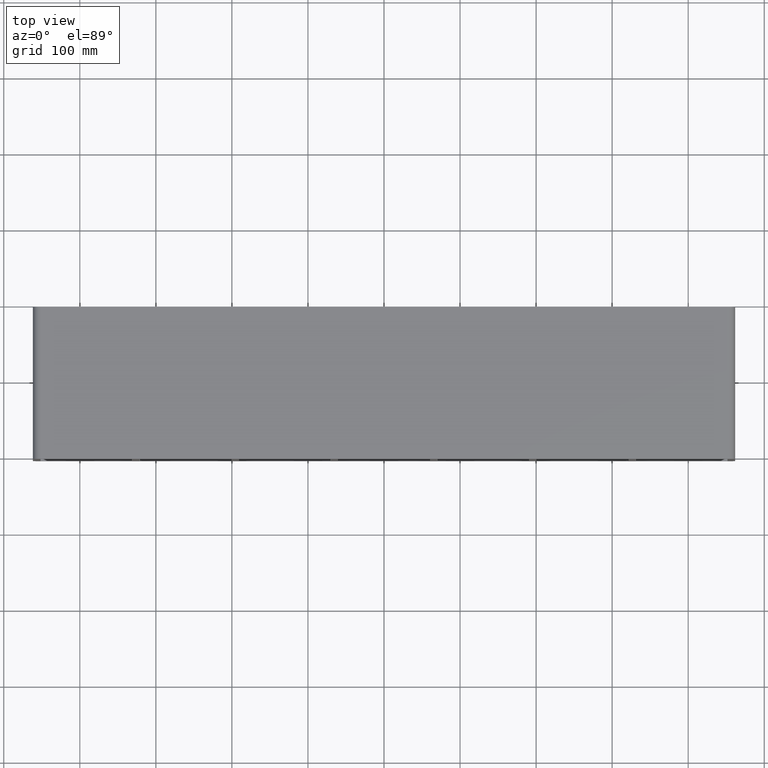
[diagram: clean part render]
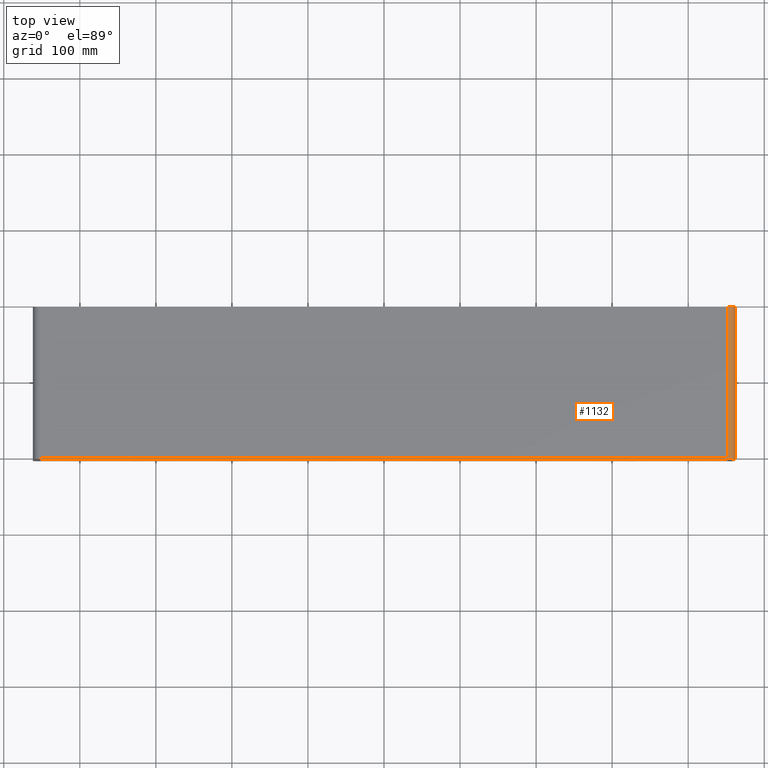
[diagram: same view with one face highlighted and labeled with its STEP entity id]
A machine part, top view. The second image highlights one B-rep face of the part: STEP entity #1132.
In plain terms, the highlighted cylindrical surface (edge-blend (fillet) strip) has radius 10 mm, axis along (0, -1, 0).
Its self-contained STEP definition (entity closure, byte-faithful):
#957=CARTESIAN_POINT('',(461.75000000000006,-3.0,79.750000000000014));
#958=VERTEX_POINT('',#957);
#965=CARTESIAN_POINT('',(451.75000000000006,-3.0,89.750000000000014));
#966=VERTEX_POINT('',#965);
#967=CARTESIAN_POINT('',(451.75000000000006,-3.0,79.750000000000014));
#968=DIRECTION('',(0.0,1.0,0.0));
#969=DIRECTION('',(0.707106781186547,0.0,0.707106781186547));
#970=AXIS2_PLACEMENT_3D('',#967,#968,#969);
#971=CIRCLE('',#970,9.999999999999998);
#972=EDGE_CURVE('',#966,#958,#971,.T.);
#1101=CARTESIAN_POINT('',(451.75000000000006,0.0,79.750000000000014));
#1102=DIRECTION('',(0.0,-1.0,0.0));
#1103=DIRECTION('',(0.707106781186547,0.0,0.707106781186547));
#1104=AXIS2_PLACEMENT_3D('',#1101,#1102,#1103);
#1105=CYLINDRICAL_SURFACE('',#1104,10.0);
#1106=ORIENTED_EDGE('',*,*,#972,.T.);
#1107=CARTESIAN_POINT('',(461.75000000000006,197.0,79.750000000000014));
#1108=VERTEX_POINT('',#1107);
#1109=CARTESIAN_POINT('',(461.75000000000006,-3.0,79.750000000000014));
#1110=DIRECTION('',(0.0,1.0,0.0));
#1111=VECTOR('',#1110,200.0);
#1112=LINE('',#1109,#1111);
#1113=EDGE_CURVE('',#958,#1108,#1112,.T.);
#1114=ORIENTED_EDGE('',*,*,#1113,.T.);
#1115=CARTESIAN_POINT('',(451.75000000000006,197.0,89.750000000000014));
#1116=VERTEX_POINT('',#1115);
#1117=CARTESIAN_POINT('',(451.75000000000006,197.0,79.750000000000014));
#1118=DIRECTION('',(0.0,-1.0,0.0));
#1119=DIRECTION('',(0.707106781186547,0.0,0.707106781186547));
#1120=AXIS2_PLACEMENT_3D('',#1117,#1118,#1119);
#1121=CIRCLE('',#1120,9.999999999999998);
#1122=EDGE_CURVE('',#1108,#1116,#1121,.T.);
#1123=ORIENTED_EDGE('',*,*,#1122,.T.);
#1124=CARTESIAN_POINT('',(451.75000000000006,197.0,89.750000000000014));
#1125=DIRECTION('',(0.0,-1.0,0.0));
#1126=VECTOR('',#1125,200.0);
#1127=LINE('',#1124,#1126);
#1128=EDGE_CURVE('',#1116,#966,#1127,.T.);
#1129=ORIENTED_EDGE('',*,*,#1128,.T.);
#1130=EDGE_LOOP('',(#1106,#1114,#1123,#1129));
#1131=FACE_OUTER_BOUND('',#1130,.T.);
#1132=ADVANCED_FACE('',(#1131),#1105,.T.);